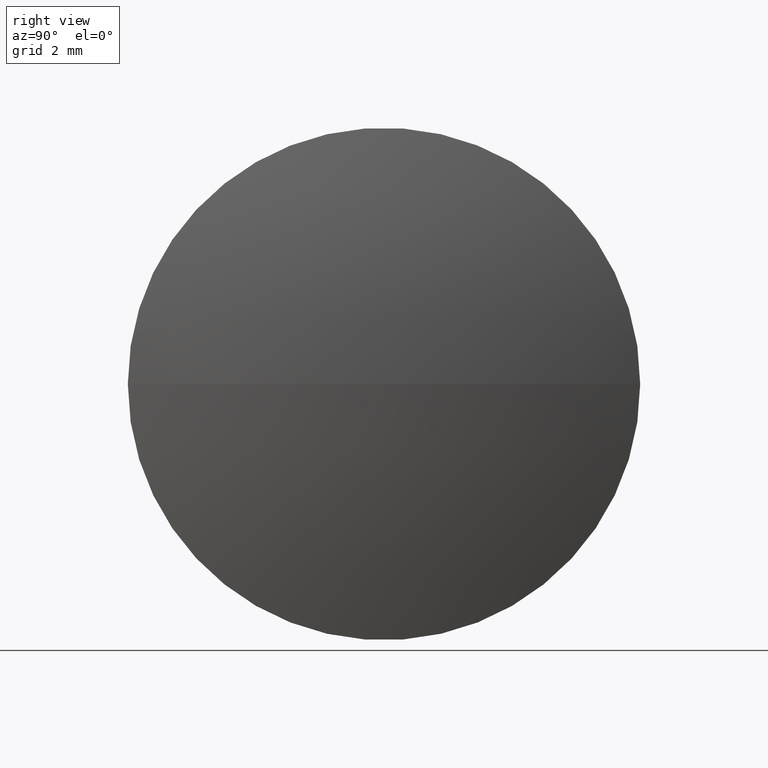
[diagram: clean part render]
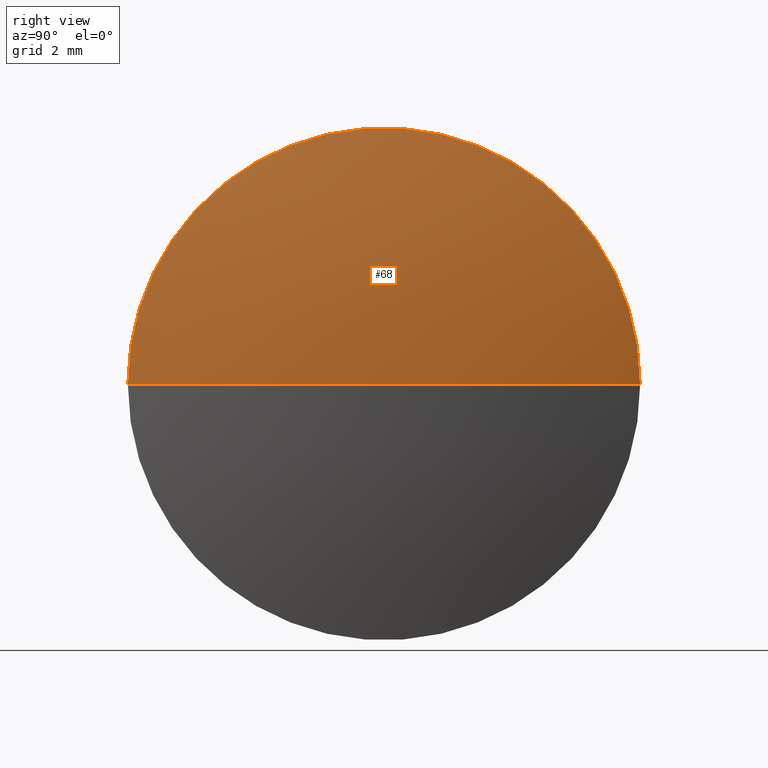
[diagram: same view with one face highlighted and labeled with its STEP entity id]
A machine part, right view. The second image highlights one B-rep face of the part: STEP entity #68.
In plain terms, the highlighted spherical surface has radius 25.4301 mm.
Its self-contained STEP definition (entity closure, byte-faithful):
#16 = EDGE_CURVE ( 'NONE', #110, #198, #109, .T. ) ;
#29 = DIRECTION ( 'NONE',  ( 0.0000000000000000000, -0.0000000000000000000, 1.000000000000000000 ) ) ;
#33 = DIRECTION ( 'NONE',  ( 0.0000000000000000000, 0.0000000000000000000, -1.000000000000000000 ) ) ;
#51 = DIRECTION ( 'NONE',  ( 2.220446049250312300E-015, 1.000000000000000000, 0.0000000000000000000 ) ) ;
#56 = AXIS2_PLACEMENT_3D ( 'NONE', #186, #29, #241 ) ;
#67 = VERTEX_POINT ( 'NONE', #286 ) ;
#68 = ADVANCED_FACE ( 'NONE', ( #132 ), #299, .T. ) ;
#70 = AXIS2_PLACEMENT_3D ( 'NONE', #191, #237, #51 ) ;
#102 = ORIENTED_EDGE ( 'NONE', *, *, #284, .F. ) ;
#105 = EDGE_CURVE ( 'NONE', #67, #110, #183, .T. ) ;
#109 = CIRCLE ( 'NONE', #261, 25.43006410256409900 ) ;
#110 = VERTEX_POINT ( 'NONE', #123 ) ;
#113 = ORIENTED_EDGE ( 'NONE', *, *, #105, .T. ) ;
#123 = CARTESIAN_POINT ( 'NONE',  ( 43.06832370800323400, 17.67525247203972000, 7.654042494670971400E-016 ) ) ;
#132 = FACE_OUTER_BOUND ( 'NONE', #257, .T. ) ;
#146 = CARTESIAN_POINT ( 'NONE',  ( 43.84832370800325700, 23.92525247203973000, 0.0000000000000000000 ) ) ;
#169 = CARTESIAN_POINT ( 'NONE',  ( 18.41825960543915700, 23.92525247203978000, 0.0000000000000000000 ) ) ;
#183 = CIRCLE ( 'NONE', #70, 6.250000000000001800 ) ;
#186 = CARTESIAN_POINT ( 'NONE',  ( 18.41825960543915700, 23.92525247203978000, 0.0000000000000000000 ) ) ;
#189 = CARTESIAN_POINT ( 'NONE',  ( 18.41825960543915700, 23.92525247203978000, 0.0000000000000000000 ) ) ;
#191 = CARTESIAN_POINT ( 'NONE',  ( 43.06832370800324100, 23.92525247203977300, 0.0000000000000000000 ) ) ;
#198 = VERTEX_POINT ( 'NONE', #146 ) ;
#237 = DIRECTION ( 'NONE',  ( 1.000000000000000000, -1.980143587423449700E-015, -0.0000000000000000000 ) ) ;
#238 = DIRECTION ( 'NONE',  ( 2.424976506190284800E-031, 1.224646799147353200E-016, 1.000000000000000000 ) ) ;
#241 = DIRECTION ( 'NONE',  ( 2.046463747374387600E-015, 1.000000000000000000, 0.0000000000000000000 ) ) ;
#247 = DIRECTION ( 'NONE',  ( -1.000000000000000000, 0.0000000000000000000, 0.0000000000000000000 ) ) ;
#257 = EDGE_LOOP ( 'NONE', ( #113, #293, #102 ) ) ;
#260 = DIRECTION ( 'NONE',  ( 0.0000000000000000000, -1.000000000000000000, 1.224646799147353200E-016 ) ) ;
#261 = AXIS2_PLACEMENT_3D ( 'NONE', #189, #238, #260 ) ;
#271 = CIRCLE ( 'NONE', #303, 25.43006410256409900 ) ;
#284 = EDGE_CURVE ( 'NONE', #67, #198, #271, .T. ) ;
#286 = CARTESIAN_POINT ( 'NONE',  ( 43.06832370800325500, 30.17525247203978400, 0.0000000000000000000 ) ) ;
#293 = ORIENTED_EDGE ( 'NONE', *, *, #16, .T. ) ;
#299 = SPHERICAL_SURFACE ( 'NONE', #56, 25.43006410256409900 ) ;
#303 = AXIS2_PLACEMENT_3D ( 'NONE', #169, #33, #247 ) ;